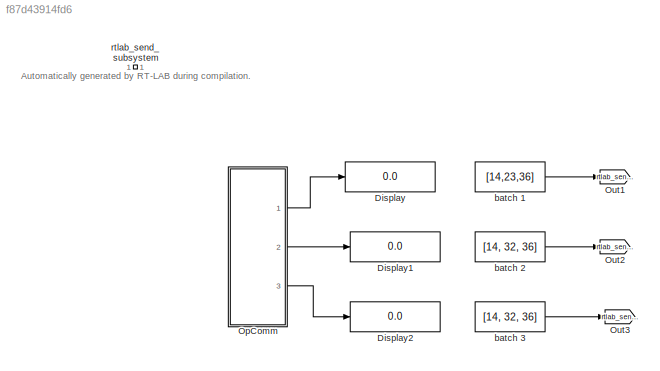
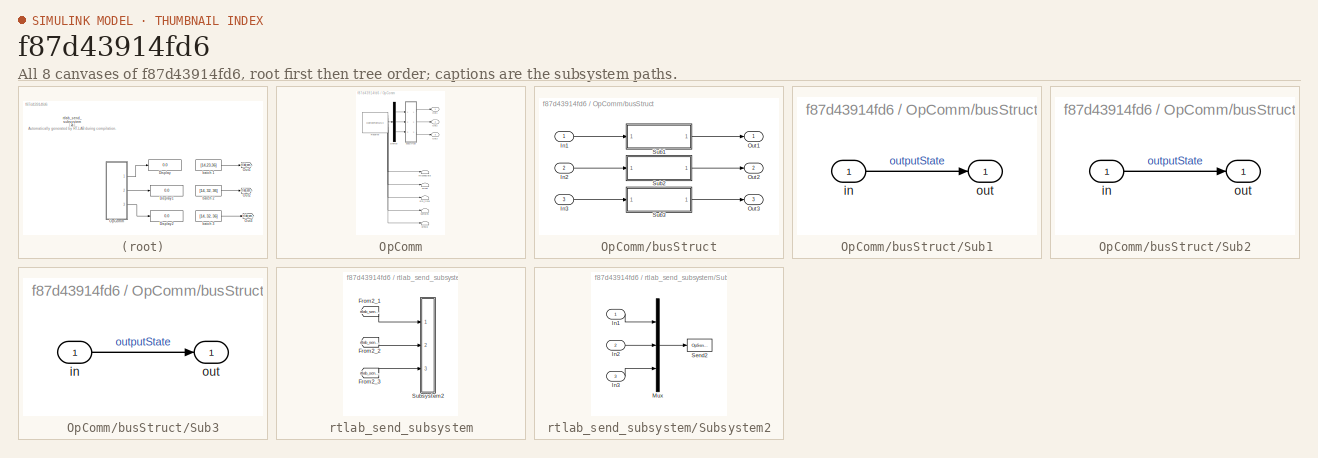
[diagram: thumbnail index - all 8 canvases of the model, root first then tree order]
MODEL slx_f87d43914fd6
KIND model
CONFIG AbsTol = auto
CONFIG EnableMultiTasking = off
CONFIG FixedStep = 0.001
CONFIG MaxStep = auto
CONFIG MinStep = auto
CONFIG RelTol = 1e-3
CONFIG SampleTimeConstraint = Unconstrained
CONFIG SolverName = ode4
CONFIG StartTime = 0.0
CONFIG StopTime = inf
WORKSPACE source: MATLAB code (in-file)
WORKSPACE code: addpath src/model
WORKSPACE code: addpath src/utils
WORKSPACE utils1 = StateMachineUtils
WORKSPACE utils1 = utils1.loadEventsInAds('resources/tct/ALLEVENT.ADS')
WORKSPACE utils1 = utils1.loadDisabledEventsInPdt('resources/tct/supervisor1/DATA_SIMSUP1_MG1.PDT')
WORKSPACE utils1 = utils1.loadTransitionsInAds('resources/tct/supervisor1/SIMSUP1_MG1.ADS')
WORKSPACE encodedStates1 = StateEncoder.encode(utils1.statesArray)
WORKSPACE transitions1 = utils1.transitions
WORKSPACE allEvents1 = utils1.eventsArray
WORKSPACE utils2 = StateMachineUtils
WORKSPACE utils2 = utils2.loadEventsInAds('resources/tct/ALLEVENT.ADS')
WORKSPACE utils2 = utils2.loadDisabledEventsInPdt('resources/tct/supervisor2/DATA_SIMSUP2_MG1.PDT')
WORKSPACE utils2 = utils2.loadTransitionsInAds('resources/tct/supervisor2/SIMSUP2_MG1.ADS')
WORKSPACE encodedStates2 = StateEncoder.encode(utils2.statesArray)
WORKSPACE transitions2 = utils2.transitions
WORKSPACE allEvents2 = utils2.eventsArray
WORKSPACE utils3 = StateMachineUtils
WORKSPACE utils3 = utils3.loadEventsInAds('resources/tct/ALLEVENT.ADS')
WORKSPACE utils3 = utils3.loadDisabledEventsInPdt('resources/tct/supervisor3/DATA_SIMSUP3_MG1.PDT')
WORKSPACE utils3 = utils3.loadTransitionsInAds('resources/tct/supervisor3/SIMSUP3_MG1.ADS')
WORKSPACE encodedStates3 = StateEncoder.encode(utils3.statesArray)
WORKSPACE transitions3 = utils3.transitions
WORKSPACE allEvents3 = utils3.eventsArray
BLOCK [Display] Display
  Decimation = 1
  Ports = [1]
BLOCK [Display] Display1
  Decimation = 1
  Ports = [1]
BLOCK [Display] Display2
  Decimation = 1
  Ports = [1]
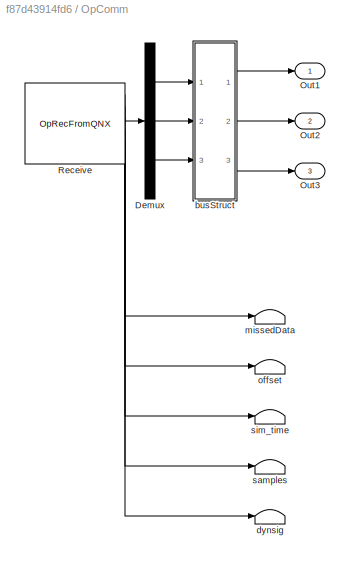
BLOCK [SubSystem] OpComm
  Ports = [0, 3]
  RequestExecContextInheritance = off
BLOCK [Demux] OpComm/Demux
  Outputs = [1  1  1]
  Ports = [1, 3]
BLOCK [Outport] OpComm/Out1
BLOCK [Outport] OpComm/Out2
  Port = 2
BLOCK [Outport] OpComm/Out3
  Port = 3
BLOCK [Reference] OpComm/Receive  REF=opal_lib/Communication/OpRecFromQNX
  Ports = [0, 6]
  SourceBlock = opal_lib/Communication/OpRecFromQNX
  SourceType = OPAL Receive Icon
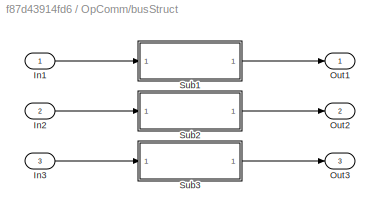
BLOCK [SubSystem] OpComm/busStruct
  Ports = [3, 3]
  RequestExecContextInheritance = off
BLOCK [Inport] OpComm/busStruct/In1
BLOCK [Inport] OpComm/busStruct/In2
  Port = 2
BLOCK [Inport] OpComm/busStruct/In3
  Port = 3
BLOCK [Outport] OpComm/busStruct/Out1
BLOCK [Outport] OpComm/busStruct/Out2
  Port = 2
BLOCK [Outport] OpComm/busStruct/Out3
  Port = 3
BLOCK [SubSystem] OpComm/busStruct/Sub1
  Ports = [1, 1]
  RequestExecContextInheritance = off
BLOCK [Inport] OpComm/busStruct/Sub1/in
BLOCK [Outport] OpComm/busStruct/Sub1/out
BLOCK [SubSystem] OpComm/busStruct/Sub2
  Ports = [1, 1]
  RequestExecContextInheritance = off
BLOCK [Inport] OpComm/busStruct/Sub2/in
BLOCK [Outport] OpComm/busStruct/Sub2/out
BLOCK [SubSystem] OpComm/busStruct/Sub3
  Ports = [1, 1]
  RequestExecContextInheritance = off
BLOCK [Inport] OpComm/busStruct/Sub3/in
BLOCK [Outport] OpComm/busStruct/Sub3/out
BLOCK [Terminator] OpComm/dynsig
BLOCK [Terminator] OpComm/missedData
BLOCK [Terminator] OpComm/offset
BLOCK [Terminator] OpComm/samples
BLOCK [Terminator] OpComm/sim_time
BLOCK [Goto] Out1
  GotoTag = rtlab_send_1
  TagVisibility = global
BLOCK [Goto] Out2
  GotoTag = rtlab_send_2
  TagVisibility = global
BLOCK [Goto] Out3
  GotoTag = rtlab_send_3
  TagVisibility = global
BLOCK [Constant] batch 1
  Value = [14,23,36]
BLOCK [Constant] batch 2
  Value = [14, 32, 36]
BLOCK [Constant] batch 3
  Value = [14, 32, 36]
BLOCK [SubSystem] rtlab_send_subsystem
  Ports = []
  Priority = -100
  RequestExecContextInheritance = off
BLOCK [From] rtlab_send_subsystem/From2_1
  GotoTag = rtlab_send_1
  TagVisibility = global
BLOCK [From] rtlab_send_subsystem/From2_2
  GotoTag = rtlab_send_2
  TagVisibility = global
BLOCK [From] rtlab_send_subsystem/From2_3
  GotoTag = rtlab_send_3
  TagVisibility = global
BLOCK [SubSystem] rtlab_send_subsystem/Subsystem2
  Ports = [3]
  RequestExecContextInheritance = off
BLOCK [Inport] rtlab_send_subsystem/Subsystem2/In1
  PortDimensions = 3
BLOCK [Inport] rtlab_send_subsystem/Subsystem2/In2
  Port = 2
  PortDimensions = 3
BLOCK [Inport] rtlab_send_subsystem/Subsystem2/In3
  Port = 3
  PortDimensions = 3
BLOCK [Mux] rtlab_send_subsystem/Subsystem2/Mux
  Inputs = 3
  Ports = [3, 1]
BLOCK [Reference] rtlab_send_subsystem/Subsystem2/Send2  REF=opal_lib/Communication/OpSendPar
ToQNX
  Ports = [1]
  SourceBlock = opal_lib/Communication/OpSendPar\nToQNX
  SourceType = OPAL Send Icon
ANNOTATION (root): Automatically generated by RT-LAB during compilation.
LINE OpComm/Demux:1 -> OpComm/busStruct:1
LINE OpComm/Demux:2 -> OpComm/busStruct:2
LINE OpComm/Demux:3 -> OpComm/busStruct:3
LINE OpComm/Receive:1 -> OpComm/Demux:1
LINE OpComm/Receive:2 -> OpComm/missedData:1
LINE OpComm/Receive:3 -> OpComm/offset:1
LINE OpComm/Receive:4 -> OpComm/sim_time:1
LINE OpComm/Receive:5 -> OpComm/samples:1
LINE OpComm/Receive:6 -> OpComm/dynsig:1
LINE OpComm/busStruct/In1:1 -> OpComm/busStruct/Sub1:1
LINE OpComm/busStruct/In2:1 -> OpComm/busStruct/Sub2:1
LINE OpComm/busStruct/In3:1 -> OpComm/busStruct/Sub3:1
LINE OpComm/busStruct/Sub1/in:1 -> OpComm/busStruct/Sub1/out:1
LINE OpComm/busStruct/Sub1:1 -> OpComm/busStruct/Out1:1
LINE OpComm/busStruct/Sub2/in:1 -> OpComm/busStruct/Sub2/out:1
LINE OpComm/busStruct/Sub2:1 -> OpComm/busStruct/Out2:1
LINE OpComm/busStruct/Sub3/in:1 -> OpComm/busStruct/Sub3/out:1
LINE OpComm/busStruct/Sub3:1 -> OpComm/busStruct/Out3:1
LINE OpComm/busStruct:1 -> OpComm/Out1:1
LINE OpComm/busStruct:2 -> OpComm/Out2:1
LINE OpComm/busStruct:3 -> OpComm/Out3:1
LINE OpComm:1 -> Display:1
LINE OpComm:2 -> Display1:1
LINE OpComm:3 -> Display2:1
LINE batch 1:1 -> Out1:1
LINE batch 2:1 -> Out2:1
LINE batch 3:1 -> Out3:1
LINE rtlab_send_subsystem/From2_1:1 -> rtlab_send_subsystem/Subsystem2:1
LINE rtlab_send_subsystem/From2_2:1 -> rtlab_send_subsystem/Subsystem2:2
LINE rtlab_send_subsystem/From2_3:1 -> rtlab_send_subsystem/Subsystem2:3
LINE rtlab_send_subsystem/Subsystem2/In1:1 -> rtlab_send_subsystem/Subsystem2/Mux:1
LINE rtlab_send_subsystem/Subsystem2/In2:1 -> rtlab_send_subsystem/Subsystem2/Mux:2
LINE rtlab_send_subsystem/Subsystem2/In3:1 -> rtlab_send_subsystem/Subsystem2/Mux:3
LINE rtlab_send_subsystem/Subsystem2/Mux:1 -> rtlab_send_subsystem/Subsystem2/Send2:1
